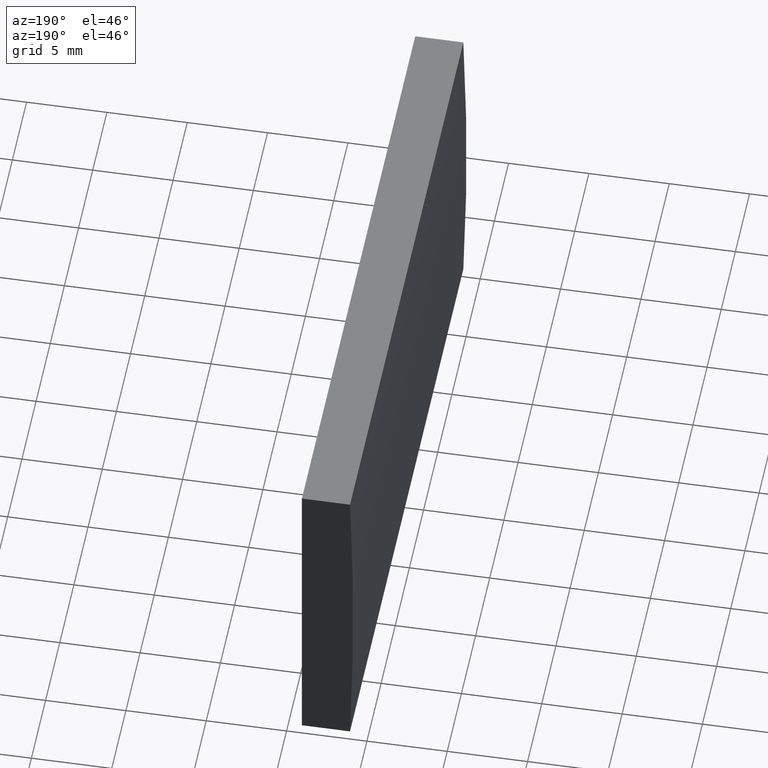
[diagram: clean part render]
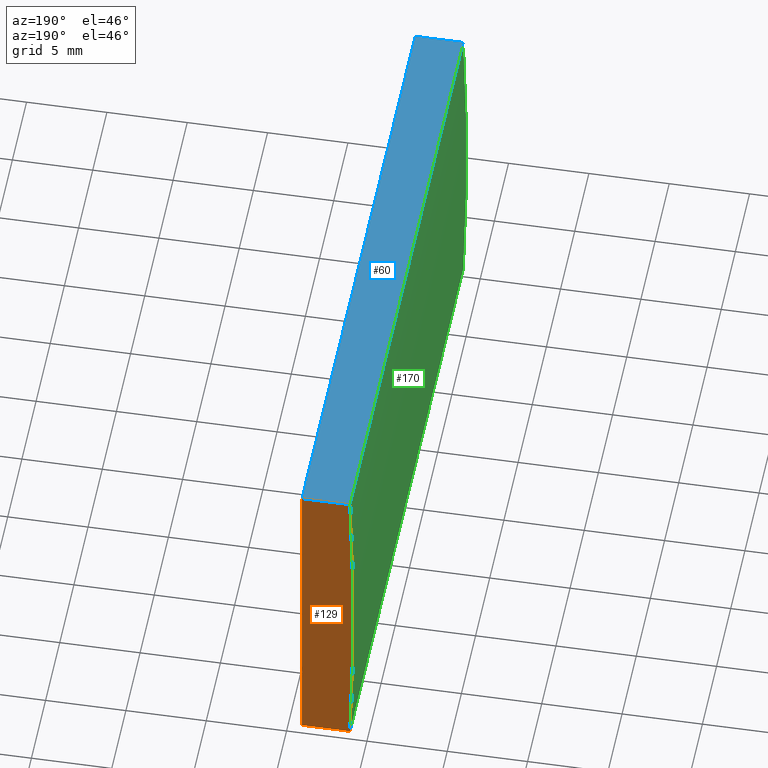
[diagram: same view with three faces highlighted in distinct colors, each labeled with its STEP entity id]
A machine part, auxiliary view with three faces highlighted in distinct colors.
Their STEP definitions:

[orange] entity #129 — the highlighted planar face has unit normal (0, 1, 0).
#3 = VECTOR ( 'NONE', #51, 1000.000000000000000 ) ;
#6 = DIRECTION ( 'NONE',  ( 0.0000000000000000000, 1.000000000000000000, 0.0000000000000000000 ) ) ;
#8 = CARTESIAN_POINT ( 'NONE',  ( 4.355204334851265500, 40.00000000000000000, 4.286263797015675000E-017 ) ) ;
#18 = DIRECTION ( 'NONE',  ( 1.000000000000000000, 0.0000000000000000000, 0.0000000000000000000 ) ) ;
#19 = CARTESIAN_POINT ( 'NONE',  ( -253.9512996483044300, 40.00000000000000000, 10.00000000000000000 ) ) ;
#23 = VERTEX_POINT ( 'NONE', #177 ) ;
#31 = CARTESIAN_POINT ( 'NONE',  ( 4.355204334851265500, 40.00000000000000000, 4.286263797015675000E-017 ) ) ;
#34 = CARTESIAN_POINT ( 'NONE',  ( -250.9547956651486800, 40.00000000000000000, 10.00000000000000000 ) ) ;
#36 = EDGE_CURVE ( 'NONE', #145, #23, #59, .T. ) ;
#43 = CARTESIAN_POINT ( 'NONE',  ( -253.9512996483044300, 40.00000000000000000, -10.00000000000000000 ) ) ;
#51 = DIRECTION ( 'NONE',  ( -0.0000000000000000000, -0.0000000000000000000, -1.000000000000000000 ) ) ;
#59 = LINE ( 'NONE', #43, #107 ) ;
#62 = EDGE_LOOP ( 'NONE', ( #85, #92, #197, #118 ) ) ;
#70 = VERTEX_POINT ( 'NONE', #19 ) ;
#76 = CARTESIAN_POINT ( 'NONE',  ( -250.9547956651486800, 40.00000000000000000, -9.999999999999941400 ) ) ;
#78 = EDGE_CURVE ( 'NONE', #23, #70, #143, .T. ) ;
#84 = VECTOR ( 'NONE', #18, 1000.000000000000000 ) ;
#85 = ORIENTED_EDGE ( 'NONE', *, *, #78, .T. ) ;
#92 = ORIENTED_EDGE ( 'NONE', *, *, #140, .T. ) ;
#96 = FACE_OUTER_BOUND ( 'NONE', #62, .T. ) ;
#103 = DIRECTION ( 'NONE',  ( 0.0000000000000000000, 0.0000000000000000000, 1.000000000000000000 ) ) ;
#107 = VECTOR ( 'NONE', #111, 1000.000000000000000 ) ;
#111 = DIRECTION ( 'NONE',  ( -1.000000000000000000, -0.0000000000000000000, -1.968313692047762200E-014 ) ) ;
#118 = ORIENTED_EDGE ( 'NONE', *, *, #36, .T. ) ;
#123 = EDGE_CURVE ( 'NONE', #194, #145, #135, .T. ) ;
#129 = ADVANCED_FACE ( 'NONE', ( #96 ), #159, .T. ) ;
#131 = DIRECTION ( 'NONE',  ( 0.0000000000000000000, 1.000000000000000000, 0.0000000000000000000 ) ) ;
#134 = LINE ( 'NONE', #136, #84 ) ;
#135 = LINE ( 'NONE', #76, #3 ) ;
#136 = CARTESIAN_POINT ( 'NONE',  ( -253.9512996483044300, 40.00000000000000000, 10.00000000000000000 ) ) ;
#140 = EDGE_CURVE ( 'NONE', #70, #194, #134, .T. ) ;
#143 = CIRCLE ( 'NONE', #154, 258.5000000000000600 ) ;
#145 = VERTEX_POINT ( 'NONE', #153 ) ;
#146 = AXIS2_PLACEMENT_3D ( 'NONE', #31, #6, #189 ) ;
#153 = CARTESIAN_POINT ( 'NONE',  ( -250.9547956651486800, 40.00000000000000000, -9.999999999999941400 ) ) ;
#154 = AXIS2_PLACEMENT_3D ( 'NONE', #8, #131, #103 ) ;
#159 = PLANE ( 'NONE',  #146 ) ;
#177 = CARTESIAN_POINT ( 'NONE',  ( -253.9512996483044300, 40.00000000000000000, -10.00000000000000000 ) ) ;
#189 = DIRECTION ( 'NONE',  ( 0.0000000000000000000, -0.0000000000000000000, 1.000000000000000000 ) ) ;
#194 = VERTEX_POINT ( 'NONE', #34 ) ;
#197 = ORIENTED_EDGE ( 'NONE', *, *, #123, .T. ) ;

[blue] entity #60 — the highlighted planar face has unit normal (0, 0, -1).
#1 = CARTESIAN_POINT ( 'NONE',  ( -253.9512996483044300, 40.00000000000000000, 10.00000000000000000 ) ) ;
#5 = DIRECTION ( 'NONE',  ( 0.0000000000000000000, 0.0000000000000000000, -1.000000000000000000 ) ) ;
#7 = VECTOR ( 'NONE', #144, 1000.000000000000000 ) ;
#10 = VECTOR ( 'NONE', #166, 1000.000000000000000 ) ;
#13 = DIRECTION ( 'NONE',  ( -1.000000000000000000, 0.0000000000000000000, -0.0000000000000000000 ) ) ;
#18 = DIRECTION ( 'NONE',  ( 1.000000000000000000, 0.0000000000000000000, 0.0000000000000000000 ) ) ;
#19 = CARTESIAN_POINT ( 'NONE',  ( -253.9512996483044300, 40.00000000000000000, 10.00000000000000000 ) ) ;
#20 = ORIENTED_EDGE ( 'NONE', *, *, #47, .F. ) ;
#21 = LINE ( 'NONE', #35, #7 ) ;
#24 = LINE ( 'NONE', #83, #10 ) ;
#29 = VECTOR ( 'NONE', #169, 1000.000000000000000 ) ;
#34 = CARTESIAN_POINT ( 'NONE',  ( -250.9547956651486800, 40.00000000000000000, 10.00000000000000000 ) ) ;
#35 = CARTESIAN_POINT ( 'NONE',  ( -253.9512996483044300, 0.0000000000000000000, 10.00000000000000000 ) ) ;
#47 = EDGE_CURVE ( 'NONE', #194, #157, #201, .T. ) ;
#60 = ADVANCED_FACE ( 'NONE', ( #126 ), #171, .F. ) ;
#61 = ORIENTED_EDGE ( 'NONE', *, *, #140, .F. ) ;
#63 = CARTESIAN_POINT ( 'NONE',  ( -250.9547956651486800, 40.00000000000000000, 10.00000000000000000 ) ) ;
#65 = ORIENTED_EDGE ( 'NONE', *, *, #105, .T. ) ;
#69 = VERTEX_POINT ( 'NONE', #112 ) ;
#70 = VERTEX_POINT ( 'NONE', #19 ) ;
#82 = CARTESIAN_POINT ( 'NONE',  ( -250.9547956651486800, 0.0000000000000000000, 10.00000000000000000 ) ) ;
#83 = CARTESIAN_POINT ( 'NONE',  ( -253.9512996483044300, 40.00000000000000000, 10.00000000000000000 ) ) ;
#84 = VECTOR ( 'NONE', #18, 1000.000000000000000 ) ;
#102 = EDGE_LOOP ( 'NONE', ( #65, #20, #61, #164 ) ) ;
#105 = EDGE_CURVE ( 'NONE', #69, #157, #21, .T. ) ;
#112 = CARTESIAN_POINT ( 'NONE',  ( -253.9512996483044300, 0.0000000000000000000, 10.00000000000000000 ) ) ;
#126 = FACE_OUTER_BOUND ( 'NONE', #102, .T. ) ;
#134 = LINE ( 'NONE', #136, #84 ) ;
#136 = CARTESIAN_POINT ( 'NONE',  ( -253.9512996483044300, 40.00000000000000000, 10.00000000000000000 ) ) ;
#140 = EDGE_CURVE ( 'NONE', #70, #194, #134, .T. ) ;
#144 = DIRECTION ( 'NONE',  ( 1.000000000000000000, 0.0000000000000000000, 0.0000000000000000000 ) ) ;
#157 = VERTEX_POINT ( 'NONE', #82 ) ;
#162 = AXIS2_PLACEMENT_3D ( 'NONE', #1, #5, #13 ) ;
#164 = ORIENTED_EDGE ( 'NONE', *, *, #191, .T. ) ;
#166 = DIRECTION ( 'NONE',  ( -0.0000000000000000000, -1.000000000000000000, -0.0000000000000000000 ) ) ;
#169 = DIRECTION ( 'NONE',  ( -0.0000000000000000000, -1.000000000000000000, -0.0000000000000000000 ) ) ;
#171 = PLANE ( 'NONE',  #162 ) ;
#191 = EDGE_CURVE ( 'NONE', #70, #69, #24, .T. ) ;
#194 = VERTEX_POINT ( 'NONE', #34 ) ;
#201 = LINE ( 'NONE', #63, #29 ) ;

[green] entity #170 — the highlighted cylindrical surface (partial cylindrical patch) has radius 258.5 mm, axis along (-0, -1, -0).
#8 = CARTESIAN_POINT ( 'NONE',  ( 4.355204334851265500, 40.00000000000000000, 4.286263797015675000E-017 ) ) ;
#10 = VECTOR ( 'NONE', #166, 1000.000000000000000 ) ;
#19 = CARTESIAN_POINT ( 'NONE',  ( -253.9512996483044300, 40.00000000000000000, 10.00000000000000000 ) ) ;
#23 = VERTEX_POINT ( 'NONE', #177 ) ;
#24 = LINE ( 'NONE', #83, #10 ) ;
#30 = CARTESIAN_POINT ( 'NONE',  ( -253.9512996483044300, 40.00000000000000000, -10.00000000000000000 ) ) ;
#38 = EDGE_LOOP ( 'NONE', ( #100, #58, #151, #149 ) ) ;
#58 = ORIENTED_EDGE ( 'NONE', *, *, #191, .F. ) ;
#67 = DIRECTION ( 'NONE',  ( -0.0000000000000000000, -1.000000000000000000, -0.0000000000000000000 ) ) ;
#69 = VERTEX_POINT ( 'NONE', #112 ) ;
#70 = VERTEX_POINT ( 'NONE', #19 ) ;
#75 = EDGE_CURVE ( 'NONE', #113, #69, #202, .T. ) ;
#77 = VECTOR ( 'NONE', #67, 1000.000000000000000 ) ;
#78 = EDGE_CURVE ( 'NONE', #23, #70, #143, .T. ) ;
#83 = CARTESIAN_POINT ( 'NONE',  ( -253.9512996483044300, 40.00000000000000000, 10.00000000000000000 ) ) ;
#91 = FACE_OUTER_BOUND ( 'NONE', #38, .T. ) ;
#100 = ORIENTED_EDGE ( 'NONE', *, *, #75, .T. ) ;
#103 = DIRECTION ( 'NONE',  ( 0.0000000000000000000, 0.0000000000000000000, 1.000000000000000000 ) ) ;
#108 = CYLINDRICAL_SURFACE ( 'NONE', #120, 258.5000000000000600 ) ;
#112 = CARTESIAN_POINT ( 'NONE',  ( -253.9512996483044300, 0.0000000000000000000, 10.00000000000000000 ) ) ;
#113 = VERTEX_POINT ( 'NONE', #142 ) ;
#117 = DIRECTION ( 'NONE',  ( -0.0000000000000000000, -1.000000000000000000, -0.0000000000000000000 ) ) ;
#120 = AXIS2_PLACEMENT_3D ( 'NONE', #188, #117, #137 ) ;
#122 = CARTESIAN_POINT ( 'NONE',  ( 4.355204334851265500, 0.0000000000000000000, 4.286263797015675000E-017 ) ) ;
#131 = DIRECTION ( 'NONE',  ( 0.0000000000000000000, 1.000000000000000000, 0.0000000000000000000 ) ) ;
#137 = DIRECTION ( 'NONE',  ( 0.0000000000000000000, 0.0000000000000000000, -1.000000000000000000 ) ) ;
#138 = DIRECTION ( 'NONE',  ( 0.0000000000000000000, 1.000000000000000000, 0.0000000000000000000 ) ) ;
#142 = CARTESIAN_POINT ( 'NONE',  ( -253.9512996483044300, 0.0000000000000000000, -10.00000000000000000 ) ) ;
#143 = CIRCLE ( 'NONE', #154, 258.5000000000000600 ) ;
#149 = ORIENTED_EDGE ( 'NONE', *, *, #204, .T. ) ;
#150 = DIRECTION ( 'NONE',  ( 0.0000000000000000000, 0.0000000000000000000, 1.000000000000000000 ) ) ;
#151 = ORIENTED_EDGE ( 'NONE', *, *, #78, .F. ) ;
#154 = AXIS2_PLACEMENT_3D ( 'NONE', #8, #131, #103 ) ;
#166 = DIRECTION ( 'NONE',  ( -0.0000000000000000000, -1.000000000000000000, -0.0000000000000000000 ) ) ;
#170 = ADVANCED_FACE ( 'NONE', ( #91 ), #108, .T. ) ;
#177 = CARTESIAN_POINT ( 'NONE',  ( -253.9512996483044300, 40.00000000000000000, -10.00000000000000000 ) ) ;
#188 = CARTESIAN_POINT ( 'NONE',  ( 4.355204334851265500, 40.00000000000000000, 4.286263797015675000E-017 ) ) ;
#191 = EDGE_CURVE ( 'NONE', #70, #69, #24, .T. ) ;
#193 = AXIS2_PLACEMENT_3D ( 'NONE', #122, #138, #150 ) ;
#195 = LINE ( 'NONE', #30, #77 ) ;
#202 = CIRCLE ( 'NONE', #193, 258.5000000000000600 ) ;
#204 = EDGE_CURVE ( 'NONE', #23, #113, #195, .T. ) ;